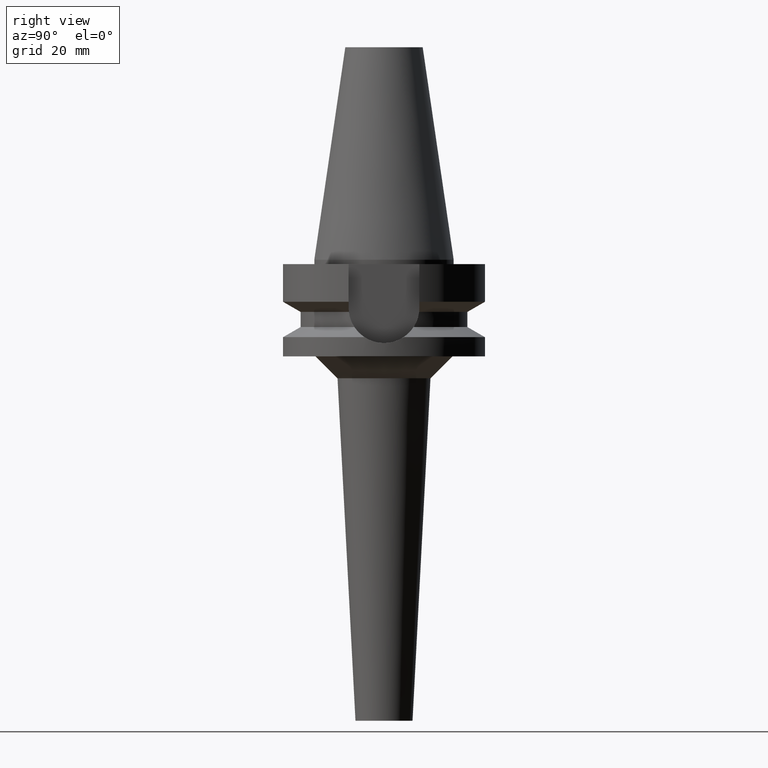
[diagram: clean part render]
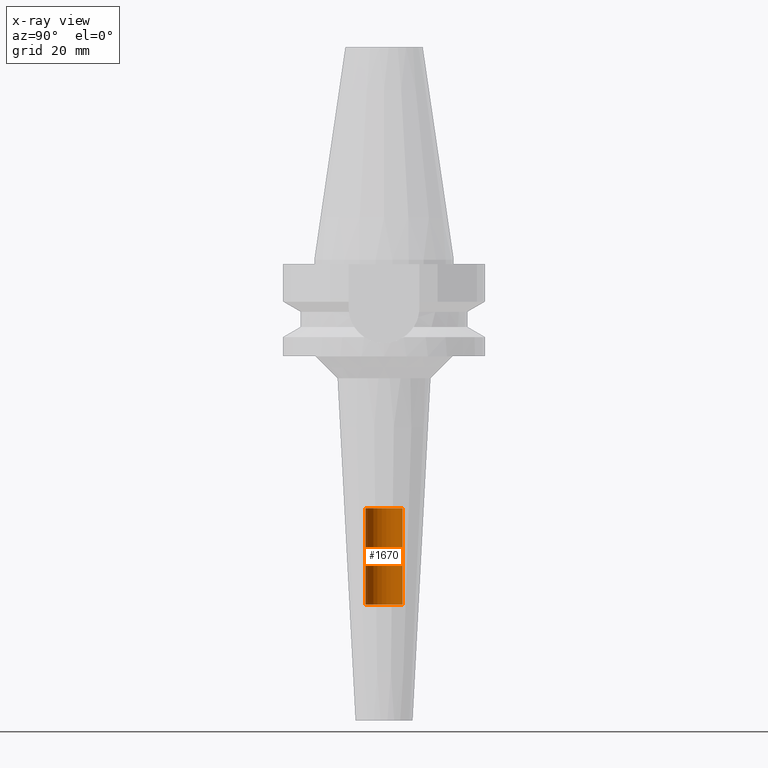
[diagram: x-ray — body ghosted, one internal face saturated and labeled with its STEP entity id]
A machine part, right view, then the same camera in x-ray: the body is ghosted and one INTERNAL B-rep face — a face not visible from any outside direction — is saturated and labeled: STEP entity #1670.
In plain terms, the highlighted cylindrical surface (edge-blend (fillet) strip) has radius 4.25 mm, axis along (0, 0, -1).
Its self-contained STEP definition (entity closure, byte-faithful):
#737=CARTESIAN_POINT('',(0.E0,1.911306259429E-14,-7.86E1));
#738=DIRECTION('',(0.E0,0.E0,-1.E0));
#739=DIRECTION('',(0.E0,-1.E0,0.E0));
#740=AXIS2_PLACEMENT_3D('',#737,#738,#739);
#769=DIRECTION('',(0.E0,0.E0,1.E0));
#770=VECTOR('',#769,2.2E1);
#771=CARTESIAN_POINT('',(0.E0,-4.25E0,-7.86E1));
#772=LINE('',#771,#770);
#776=DIRECTION('',(0.E0,0.E0,1.E0));
#777=VECTOR('',#776,2.2E1);
#778=CARTESIAN_POINT('',(0.E0,4.25E0,-7.86E1));
#779=LINE('',#778,#777);
#807=CARTESIAN_POINT('',(0.E0,1.911306259429E-14,-5.66E1));
#808=DIRECTION('',(0.E0,0.E0,1.E0));
#809=DIRECTION('',(0.E0,1.E0,0.E0));
#810=AXIS2_PLACEMENT_3D('',#807,#808,#809);
#1003=CARTESIAN_POINT('',(0.E0,-4.25E0,-5.66E1));
#1004=CARTESIAN_POINT('',(0.E0,4.25E0,-5.66E1));
#1005=VERTEX_POINT('',#1003);
#1006=VERTEX_POINT('',#1004);
#1007=CARTESIAN_POINT('',(0.E0,4.25E0,-7.86E1));
#1008=VERTEX_POINT('',#1007);
#1009=CARTESIAN_POINT('',(0.E0,-4.25E0,-7.86E1));
#1010=VERTEX_POINT('',#1009);
#1656=CARTESIAN_POINT('',(0.E0,1.911306259429E-14,5.607E1));
#1657=DIRECTION('',(0.E0,0.E0,-1.E0));
#1658=DIRECTION('',(0.E0,-1.E0,0.E0));
#1659=AXIS2_PLACEMENT_3D('',#1656,#1657,#1658);
#1660=CYLINDRICAL_SURFACE('',#1659,4.25E0);
#1662=ORIENTED_EDGE('',*,*,#1661,.F.);
#1663=ORIENTED_EDGE('',*,*,#1645,.F.);
#1665=ORIENTED_EDGE('',*,*,#1664,.T.);
#1667=ORIENTED_EDGE('',*,*,#1666,.F.);
#1668=EDGE_LOOP('',(#1662,#1663,#1665,#1667));
#1669=FACE_OUTER_BOUND('',#1668,.F.);
#741=CIRCLE('',#740,4.25E0);
#811=CIRCLE('',#810,4.25E0);
#1645=EDGE_CURVE('',#1010,#1008,#741,.T.);
#1661=EDGE_CURVE('',#1008,#1006,#779,.T.);
#1664=EDGE_CURVE('',#1010,#1005,#772,.T.);
#1666=EDGE_CURVE('',#1006,#1005,#811,.T.);
#1670=ADVANCED_FACE('',(#1669),#1660,.F.);